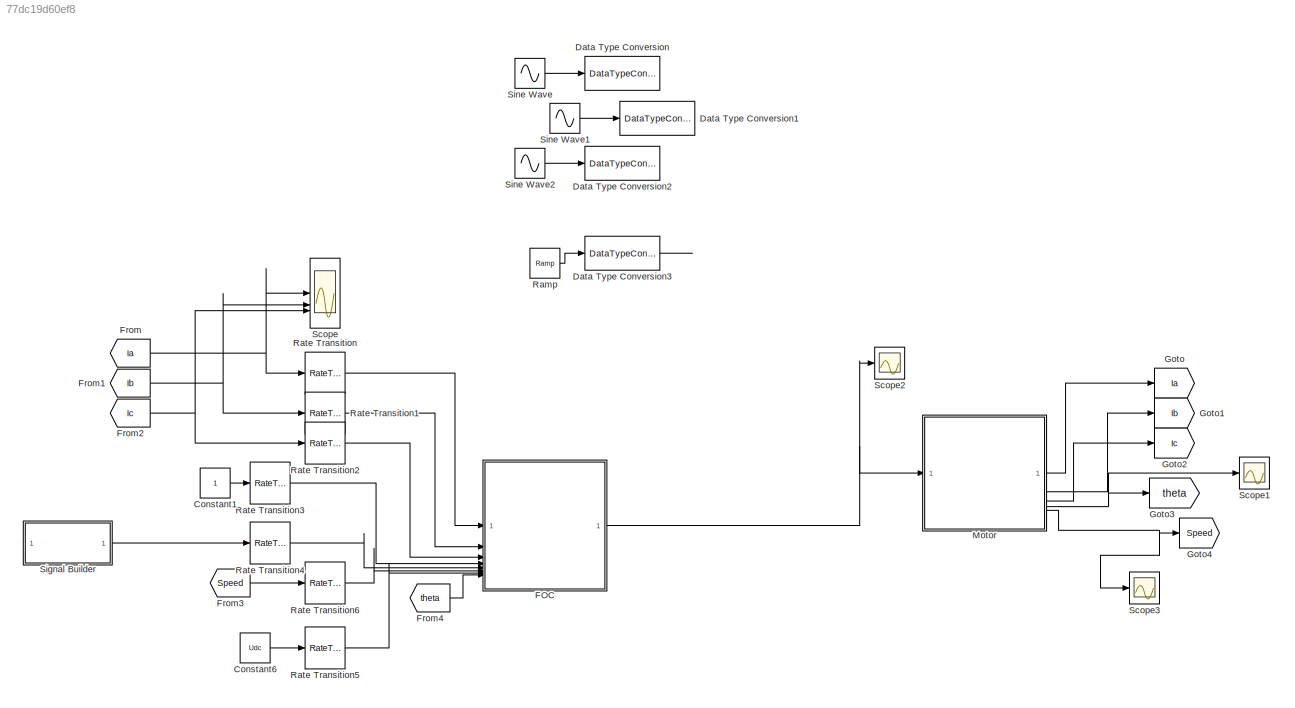
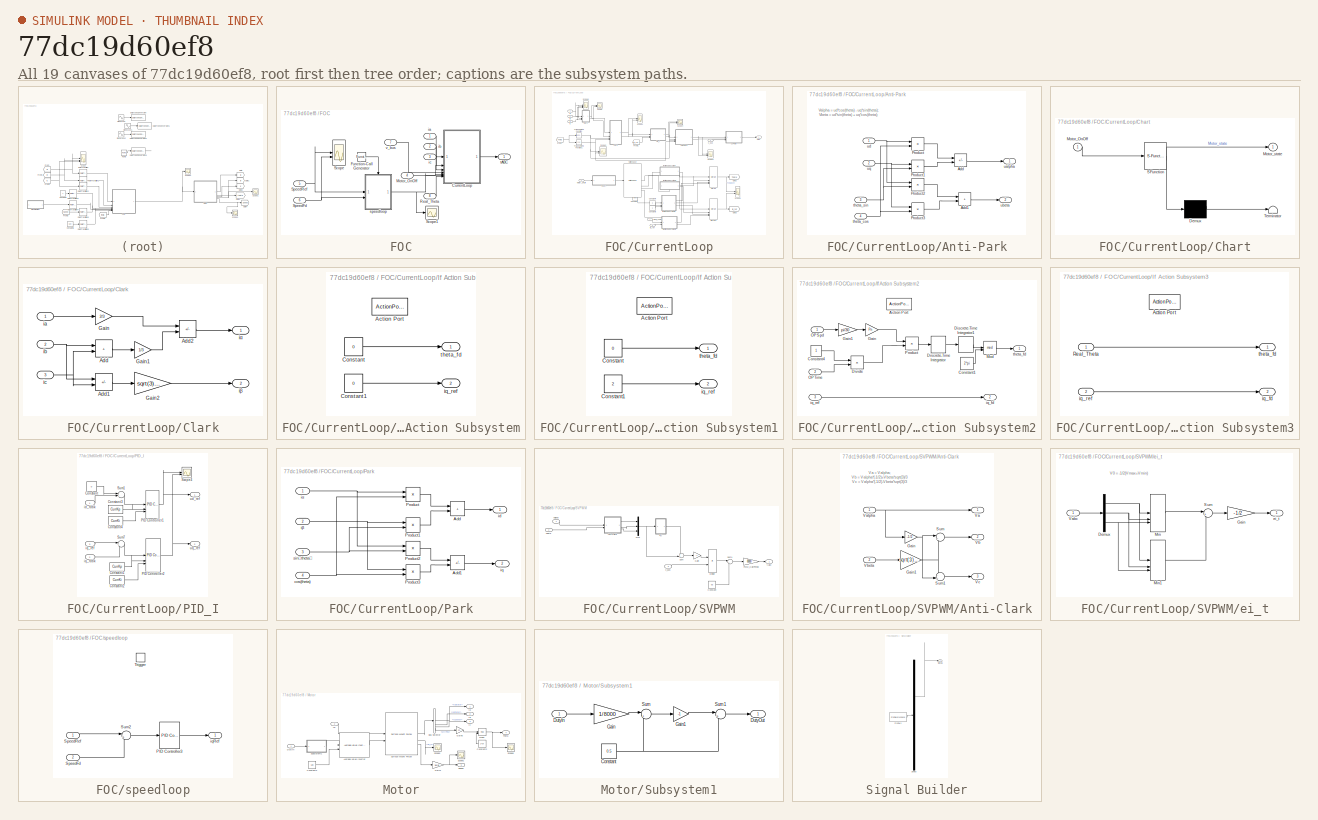
[diagram: thumbnail index - all 19 canvases of the model, root first then tree order]
MODEL slx_77dc19d60ef8
KIND model
CONFIG AbsTol = auto
CONFIG EnableMultiTasking = off
CONFIG FixedStep = 1e-4
CONFIG MaxStep = auto
CONFIG MinStep = auto
CONFIG RelTol = 1e-3
CONFIG SampleTimeConstraint = Unconstrained
CONFIG SolverName = FixedStepAuto
CONFIG StartTime = 0.0
CONFIG StopTime = 1
BLOCK [Constant] Constant1
  OutDataTypeStr = single
BLOCK [Constant] Constant6
  OutDataTypeStr = single
  Value = Udc
BLOCK [DataTypeConversion] Data Type Conversion
  OutDataTypeStr = single
  RndMeth = Floor
  SaturateOnIntegerOverflow = off
BLOCK [DataTypeConversion] Data Type Conversion1
  OutDataTypeStr = single
  RndMeth = Floor
  SaturateOnIntegerOverflow = off
BLOCK [DataTypeConversion] Data Type Conversion2
  OutDataTypeStr = single
  RndMeth = Floor
  SaturateOnIntegerOverflow = off
BLOCK [DataTypeConversion] Data Type Conversion3
  OutDataTypeStr = single
  RndMeth = Floor
  SaturateOnIntegerOverflow = off
BLOCK [SubSystem] FOC
BLOCK [Inport] FOC/ Real_Theta
  Port = 8
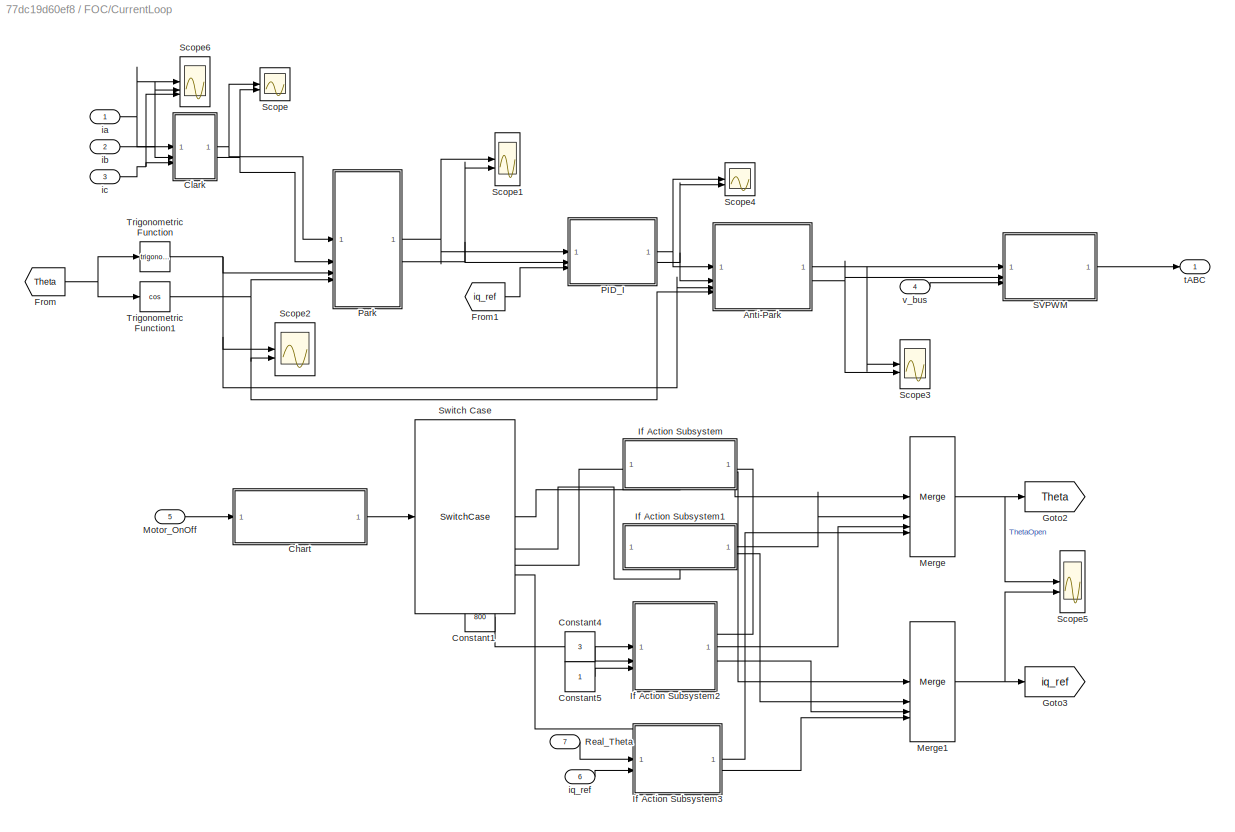
BLOCK [SubSystem] FOC/CurrentLoop
  TreatAsAtomicUnit = on
BLOCK [Inport] FOC/CurrentLoop/ Real_Theta
  Port = 7
BLOCK [SubSystem] FOC/CurrentLoop/Anti-Park
BLOCK [Sum] FOC/CurrentLoop/Anti-Park/Add
  IconShape = rectangular
  Inputs = +-
BLOCK [Sum] FOC/CurrentLoop/Anti-Park/Add1
  IconShape = rectangular
BLOCK [Product] FOC/CurrentLoop/Anti-Park/Product
BLOCK [Product] FOC/CurrentLoop/Anti-Park/Product1
BLOCK [Product] FOC/CurrentLoop/Anti-Park/Product2
BLOCK [Product] FOC/CurrentLoop/Anti-Park/Product3
BLOCK [Inport] FOC/CurrentLoop/Anti-Park/theta_cos
  Port = 4
BLOCK [Inport] FOC/CurrentLoop/Anti-Park/theta_sin
  Port = 3
BLOCK [Outport] FOC/CurrentLoop/Anti-Park/ualpha
  OutDataTypeStr = single
BLOCK [Outport] FOC/CurrentLoop/Anti-Park/ubeta
  OutDataTypeStr = single
  Port = 2
BLOCK [Inport] FOC/CurrentLoop/Anti-Park/ud
BLOCK [Inport] FOC/CurrentLoop/Anti-Park/uq
  Port = 2
BLOCK [SubSystem] FOC/CurrentLoop/Chart
  ErrorFcn = Stateflow.Translate.translate
  PermitHierarchicalResolution = ExplicitOnly
  SFBlockType = Chart
  TreatAsAtomicUnit = on
BLOCK [Demux] FOC/CurrentLoop/Chart/ Demux 
  Outputs = 1
BLOCK [S-Function] FOC/CurrentLoop/Chart/ SFunction 
  EnableBusSupport = on
  FunctionName = sf_sfun
  PortCounts = [1 2]
  SFcnIsStateOwnerBlock = off
  SFunctionDeploymentMode = off
  Tag = Stateflow S-Function 3
BLOCK [Terminator] FOC/CurrentLoop/Chart/ Terminator 
BLOCK [Inport] FOC/CurrentLoop/Chart/Motor_OnOff
BLOCK [Outport] FOC/CurrentLoop/Chart/Motor_state
BLOCK [SubSystem] FOC/CurrentLoop/Clark
BLOCK [Sum] FOC/CurrentLoop/Clark/Add
  IconShape = rectangular
BLOCK [Sum] FOC/CurrentLoop/Clark/Add1
  IconShape = rectangular
  Inputs = +-
BLOCK [Sum] FOC/CurrentLoop/Clark/Add2
  IconShape = rectangular
  Inputs = +-
BLOCK [Gain] FOC/CurrentLoop/Clark/Gain
  Gain = 2/3
BLOCK [Gain] FOC/CurrentLoop/Clark/Gain1
  Gain = 1/3
BLOCK [Gain] FOC/CurrentLoop/Clark/Gain2
  Gain = sqrt(3)/3
BLOCK [Inport] FOC/CurrentLoop/Clark/ia
BLOCK [Inport] FOC/CurrentLoop/Clark/ib
  Port = 2
BLOCK [Inport] FOC/CurrentLoop/Clark/ic
  Port = 3
BLOCK [Outport] FOC/CurrentLoop/Clark/iα
BLOCK [Outport] FOC/CurrentLoop/Clark/iβ
  Port = 2
BLOCK [Constant] FOC/CurrentLoop/Constant1
  OutDataTypeStr = single
  Value = 800
BLOCK [Constant] FOC/CurrentLoop/Constant4
  OutDataTypeStr = single
  Value = 3
BLOCK [Constant] FOC/CurrentLoop/Constant5
  OutDataTypeStr = single
BLOCK [From] FOC/CurrentLoop/From
  GotoTag = Theta
BLOCK [From] FOC/CurrentLoop/From1
  GotoTag = iq_ref
BLOCK [Goto] FOC/CurrentLoop/Goto2
  GotoTag = Theta
BLOCK [Goto] FOC/CurrentLoop/Goto3
  GotoTag = iq_ref
BLOCK [SubSystem] FOC/CurrentLoop/If Action Subsystem
  TreatAsAtomicUnit = on
BLOCK [ActionPort] FOC/CurrentLoop/If Action Subsystem/Action Port
  ActionPortLabel = case [ 1 ]:
BLOCK [Constant] FOC/CurrentLoop/If Action Subsystem/Constant
  OutDataTypeStr = single
  Value = 0
BLOCK [Constant] FOC/CurrentLoop/If Action Subsystem/Constant1
  OutDataTypeStr = single
  Value = 0
BLOCK [Outport] FOC/CurrentLoop/If Action Subsystem/iq_ref
  Port = 2
BLOCK [Outport] FOC/CurrentLoop/If Action Subsystem/theta_fd
BLOCK [SubSystem] FOC/CurrentLoop/If Action Subsystem1
  TreatAsAtomicUnit = on
BLOCK [ActionPort] FOC/CurrentLoop/If Action Subsystem1/Action Port
  ActionPortLabel = case [ 2 ]:
BLOCK [Constant] FOC/CurrentLoop/If Action Subsystem1/Constant
  OutDataTypeStr = single
  Value = 0
BLOCK [Constant] FOC/CurrentLoop/If Action Subsystem1/Constant1
  OutDataTypeStr = single
  Value = 2
BLOCK [Outport] FOC/CurrentLoop/If Action Subsystem1/iq_ref
  Port = 2
BLOCK [Outport] FOC/CurrentLoop/If Action Subsystem1/theta_fd
BLOCK [SubSystem] FOC/CurrentLoop/If Action Subsystem2
  TreatAsAtomicUnit = on
BLOCK [ActionPort] FOC/CurrentLoop/If Action Subsystem2/Action Port
  ActionPortLabel = case [ 3 ]:
BLOCK [Constant] FOC/CurrentLoop/If Action Subsystem2/Constant1
  OutDataTypeStr = single
  Value = 2*pi
BLOCK [Constant] FOC/CurrentLoop/If Action Subsystem2/Constant4
  OutDataTypeStr = single
BLOCK [DiscreteIntegrator] FOC/CurrentLoop/If Action Subsystem2/Discrete-Time Integrator
  ICPrevOutput = DiscIntNeverNeededParam
  ICPrevScaledInput = DiscIntNeverNeededParam
  InitialConditionSetting = Auto
  SampleTime = -1
BLOCK [DiscreteIntegrator] FOC/CurrentLoop/If Action Subsystem2/Discrete-Time Integrator1
  ICPrevOutput = DiscIntNeverNeededParam
  ICPrevScaledInput = DiscIntNeverNeededParam
  InitialConditionSetting = Auto
  SampleTime = -1
BLOCK [Product] FOC/CurrentLoop/If Action Subsystem2/Divide
  Inputs = */
  OutDataTypeStr = single
BLOCK [Gain] FOC/CurrentLoop/If Action Subsystem2/Gain
  Gain = Pn
BLOCK [Gain] FOC/CurrentLoop/If Action Subsystem2/Gain1
  Gain = pi/30
  OutDataTypeStr = single
BLOCK [Math] FOC/CurrentLoop/If Action Subsystem2/Mod
  Operator = mod
BLOCK [Inport] FOC/CurrentLoop/If Action Subsystem2/OPSpd
  OutDataTypeStr = single
  PortDimensions = 1
  SignalType = real
  VarSizeSig = No
BLOCK [Inport] FOC/CurrentLoop/If Action Subsystem2/OPTime
  OutDataTypeStr = single
  Port = 2
  PortDimensions = 1
  SignalType = real
  VarSizeSig = No
BLOCK [Product] FOC/CurrentLoop/If Action Subsystem2/Product
  OutDataTypeStr = single
BLOCK [Outport] FOC/CurrentLoop/If Action Subsystem2/iq_fd
  Port = 2
BLOCK [Inport] FOC/CurrentLoop/If Action Subsystem2/iq_ref
  Port = 3
BLOCK [Outport] FOC/CurrentLoop/If Action Subsystem2/theta_fd
BLOCK [SubSystem] FOC/CurrentLoop/If Action Subsystem3
  TreatAsAtomicUnit = on
BLOCK [Inport] FOC/CurrentLoop/If Action Subsystem3/ Real_Theta
  OutDataTypeStr = single
  PortDimensions = 1
  SignalType = real
  VarSizeSig = No
BLOCK [ActionPort] FOC/CurrentLoop/If Action Subsystem3/Action Port
  ActionPortLabel = case [ 4 ]:
BLOCK [Outport] FOC/CurrentLoop/If Action Subsystem3/iq_fd
  Port = 2
BLOCK [Inport] FOC/CurrentLoop/If Action Subsystem3/iq_ref
  Port = 2
BLOCK [Outport] FOC/CurrentLoop/If Action Subsystem3/theta_fd
BLOCK [Merge] FOC/CurrentLoop/Merge
  Inputs = 4
BLOCK [Merge] FOC/CurrentLoop/Merge1
  Inputs = 4
BLOCK [Inport] FOC/CurrentLoop/Motor_OnOff
  Port = 5
BLOCK [SubSystem] FOC/CurrentLoop/PID_I
BLOCK [Constant] FOC/CurrentLoop/PID_I/Constant
  OutDataTypeStr = single
  Value = 0
BLOCK [Constant] FOC/CurrentLoop/PID_I/Constant1
  OutDataTypeStr = single
  Value = CurrKp
BLOCK [Constant] FOC/CurrentLoop/PID_I/Constant2
  OutDataTypeStr = single
  Value = CurrKi
BLOCK [Constant] FOC/CurrentLoop/PID_I/Constant3
  OutDataTypeStr = single
  Value = CurrKp
BLOCK [Constant] FOC/CurrentLoop/PID_I/Constant4
  OutDataTypeStr = single
  Value = CurrKi
BLOCK [Reference] FOC/CurrentLoop/PID_I/PID Controller1  REF=slpidlib/PID Controller
  SourceBlock = slpidlib/PID Controller
  SourceType = PID 1dof
BLOCK [Reference] FOC/CurrentLoop/PID_I/PID Controller2  REF=slpidlib/PID Controller
  SourceBlock = slpidlib/PID Controller
  SourceType = PID 1dof
BLOCK [Scope] FOC/CurrentLoop/PID_I/Scope4
  Floating = off
  NumInputPorts = 2
  ScopeSpecificationString = Simulink.scopes.TimeScopeBlockCfg('CurrentConfiguration', extmgr.ConfigurationSet(extmgr.Configuration('Core','General UI',true),extmgr.Configuration('Core','Source UI',true),extmgr.Configuration('Sources','WiredSimulink',true,'DataLoggingVariableName','ScopeData4'),extmgr.Configuration('Visuals','Time Domain',true,'SerializedDisplays',{struct('MinYLimReal','-3.34669','MaxYLimReal','14.22826','YLa...<+1543ch>
BLOCK [Sum] FOC/CurrentLoop/PID_I/Sum1
  AccumDataTypeStr = single
  Inputs = |+-
  OutDataTypeStr = single
BLOCK [Sum] FOC/CurrentLoop/PID_I/Sum7
  AccumDataTypeStr = single
  Inputs = |+-
  OutDataTypeStr = single
BLOCK [Inport] FOC/CurrentLoop/PID_I/id_fdbk
  OutDataTypeStr = single
BLOCK [Inport] FOC/CurrentLoop/PID_I/iq_fdbk
  OutDataTypeStr = single
  Port = 2
BLOCK [Inport] FOC/CurrentLoop/PID_I/iq_ref
  OutDataTypeStr = single
  Port = 3
BLOCK [Outport] FOC/CurrentLoop/PID_I/ud_ref
  OutDataTypeStr = single
BLOCK [Outport] FOC/CurrentLoop/PID_I/uq_ref
  OutDataTypeStr = single
  Port = 2
BLOCK [SubSystem] FOC/CurrentLoop/Park
BLOCK [Sum] FOC/CurrentLoop/Park/Add
  AccumDataTypeStr = single
  IconShape = rectangular
  OutDataTypeStr = single
BLOCK [Sum] FOC/CurrentLoop/Park/Add1
  AccumDataTypeStr = single
  IconShape = rectangular
  Inputs = -+
  OutDataTypeStr = single
BLOCK [Product] FOC/CurrentLoop/Park/Product
  OutDataTypeStr = single
BLOCK [Product] FOC/CurrentLoop/Park/Product1
  OutDataTypeStr = single
BLOCK [Product] FOC/CurrentLoop/Park/Product2
  OutDataTypeStr = single
BLOCK [Product] FOC/CurrentLoop/Park/Product3
  OutDataTypeStr = single
BLOCK [Inport] FOC/CurrentLoop/Park/cos(theta)
  Port = 4
BLOCK [Outport] FOC/CurrentLoop/Park/id
  OutDataTypeStr = single
BLOCK [Outport] FOC/CurrentLoop/Park/iq
  OutDataTypeStr = single
  Port = 2
BLOCK [Inport] FOC/CurrentLoop/Park/iα
BLOCK [Inport] FOC/CurrentLoop/Park/iβ
  Port = 2
BLOCK [Inport] FOC/CurrentLoop/Park/sin（theta）
  Port = 3
BLOCK [SubSystem] FOC/CurrentLoop/SVPWM
BLOCK [SubSystem] FOC/CurrentLoop/SVPWM/Anti-Clark
BLOCK [Gain] FOC/CurrentLoop/SVPWM/Anti-Clark/Gain
  Gain = -1/2
  OutDataTypeStr = single
BLOCK [Gain] FOC/CurrentLoop/SVPWM/Anti-Clark/Gain1
  Gain = sqrt(3)/2
  OutDataTypeStr = single
BLOCK [Sum] FOC/CurrentLoop/SVPWM/Anti-Clark/Sum
  Inputs = |++
  OutDataTypeStr = single
BLOCK [Sum] FOC/CurrentLoop/SVPWM/Anti-Clark/Sum1
  Inputs = -+|
  OutDataTypeStr = single
BLOCK [Outport] FOC/CurrentLoop/SVPWM/Anti-Clark/Va
  OutDataTypeStr = single
BLOCK [Inport] FOC/CurrentLoop/SVPWM/Anti-Clark/Valpha
  OutDataTypeStr = single
BLOCK [Outport] FOC/CurrentLoop/SVPWM/Anti-Clark/Vb
  OutDataTypeStr = single
  Port = 2
BLOCK [Inport] FOC/CurrentLoop/SVPWM/Anti-Clark/Vbeta
  OutDataTypeStr = single
  Port = 2
BLOCK [Outport] FOC/CurrentLoop/SVPWM/Anti-Clark/Vc
  OutDataTypeStr = single
  Port = 3
BLOCK [Constant] FOC/CurrentLoop/SVPWM/Constant
  OutDataTypeStr = single
  Value = 0.5
BLOCK [Product] FOC/CurrentLoop/SVPWM/Divide
  Inputs = */
  OutDataTypeStr = single
BLOCK [Gain] FOC/CurrentLoop/SVPWM/Gain
  Gain = -1
  OutDataTypeStr = single
BLOCK [Mux] FOC/CurrentLoop/SVPWM/Mux
  DisplayOption = bar
  Inputs = 3
BLOCK [Gain] FOC/CurrentLoop/SVPWM/PWM_HalfPeriod
  Gain = 8000
  OutDataTypeStr = single
BLOCK [Sum] FOC/CurrentLoop/SVPWM/Sum
  Inputs = ++|
  OutDataTypeStr = single
BLOCK [Sum] FOC/CurrentLoop/SVPWM/Sum1
  Inputs = |++
  OutDataTypeStr = single
BLOCK [Inport] FOC/CurrentLoop/SVPWM/Valpha
BLOCK [Inport] FOC/CurrentLoop/SVPWM/Vbeta
  Port = 2
BLOCK [SubSystem] FOC/CurrentLoop/SVPWM/ei_t
BLOCK [Demux] FOC/CurrentLoop/SVPWM/ei_t/Demux
  Outputs = 3
BLOCK [Gain] FOC/CurrentLoop/SVPWM/ei_t/Gain
  Gain = -1/2
  OutDataTypeStr = single
BLOCK [MinMax] FOC/CurrentLoop/SVPWM/ei_t/Min
  Inputs = 3
  OutDataTypeStr = single
BLOCK [MinMax] FOC/CurrentLoop/SVPWM/ei_t/Min1
  Function = max
  Inputs = 3
  OutDataTypeStr = single
BLOCK [Sum] FOC/CurrentLoop/SVPWM/ei_t/Sum
  Inputs = |++
  OutDataTypeStr = single
BLOCK [Inport] FOC/CurrentLoop/SVPWM/ei_t/Vabc
  OutDataTypeStr = single
BLOCK [Outport] FOC/CurrentLoop/SVPWM/ei_t/ei_t
  OutDataTypeStr = single
BLOCK [Outport] FOC/CurrentLoop/SVPWM/tABC
  OutDataTypeStr = single
BLOCK [Inport] FOC/CurrentLoop/SVPWM/v_bus
  OutDataTypeStr = single
  Port = 3
BLOCK [Scope] FOC/CurrentLoop/Scope
  Floating = off
  NumInputPorts = 2
  ScopeSpecificationString = Simulink.scopes.TimeScopeBlockCfg('CurrentConfiguration', extmgr.ConfigurationSet(extmgr.Configuration('Core','General UI',true),extmgr.Configuration('Core','Source UI',true),extmgr.Configuration('Sources','WiredSimulink',true),extmgr.Configuration('Visuals','Time Domain',true,'SerializedDisplays',{struct('MinYLimReal','-6.24995','MaxYLimReal','6.24956','YLabelReal','','MinYLimMag','0.00000','MaxY...<+1505ch>
BLOCK [Scope] FOC/CurrentLoop/Scope1
  Floating = off
  NumInputPorts = 2
  ScopeSpecificationString = Simulink.scopes.TimeScopeBlockCfg('CurrentConfiguration', extmgr.ConfigurationSet(extmgr.Configuration('Core','General UI',true),extmgr.Configuration('Core','Source UI',true),extmgr.Configuration('Sources','WiredSimulink',true,'DataLoggingVariableName','ScopeData1'),extmgr.Configuration('Visuals','Time Domain',true,'SerializedDisplays',{struct('MinYLimReal','-6.25','MaxYLimReal','6.24997','YLabelR...<+1553ch>
BLOCK [Scope] FOC/CurrentLoop/Scope2
  Floating = off
  NumInputPorts = 2
  ScopeSpecificationString = Simulink.scopes.TimeScopeBlockCfg('CurrentConfiguration', extmgr.ConfigurationSet(extmgr.Configuration('Core','General UI',true),extmgr.Configuration('Core','Source UI',true),extmgr.Configuration('Sources','WiredSimulink',true,'DataLoggingVariableName','ScopeData2'),extmgr.Configuration('Visuals','Time Domain',true,'SerializedDisplays',{struct('MinYLimReal','-1.25','MaxYLimReal','1.25','YLabelReal...<+1509ch>
BLOCK [Scope] FOC/CurrentLoop/Scope3
  Floating = off
  NumInputPorts = 2
  ScopeSpecificationString = Simulink.scopes.TimeScopeBlockCfg('CurrentConfiguration', extmgr.ConfigurationSet(extmgr.Configuration('Core','General UI',true),extmgr.Configuration('Core','Source UI',true),extmgr.Configuration('Sources','WiredSimulink',true,'DataLoggingVariableName','ScopeData3'),extmgr.Configuration('Visuals','Time Domain',true,'SerializedDisplays',{struct('MinYLimReal','-15.58846','MaxYLimReal','15.58846','YL...<+1510ch>
BLOCK [Scope] FOC/CurrentLoop/Scope4
  Floating = off
  NumInputPorts = 2
  ScopeSpecificationString = Simulink.scopes.TimeScopeBlockCfg('CurrentConfiguration', extmgr.ConfigurationSet(extmgr.Configuration('Core','General UI',true),extmgr.Configuration('Core','Source UI',true),extmgr.Configuration('Sources','WiredSimulink',true,'DataLoggingVariableName','ScopeData11'),extmgr.Configuration('Visuals','Time Domain',true,'SerializedDisplays',{struct('MinYLimReal','-12.47077','MaxYLimReal','14.02961','Y...<+1547ch>
BLOCK [Scope] FOC/CurrentLoop/Scope5
  Floating = off
  NumInputPorts = 2
  ScopeSpecificationString = Simulink.scopes.TimeScopeBlockCfg('CurrentConfiguration', extmgr.ConfigurationSet(extmgr.Configuration('Core','General UI',true),extmgr.Configuration('Core','Source UI',true),extmgr.Configuration('Sources','WiredSimulink',true,'DataLoggingVariableName','ScopeData3'),extmgr.Configuration('Visuals','Time Domain',true,'SerializedDisplays',{struct('MinYLimReal','-4.16039','MaxYLimReal','7.44355','YLab...<+1497ch>
BLOCK [Scope] FOC/CurrentLoop/Scope6
  Floating = off
  NumInputPorts = 3
  ScopeSpecificationString = Simulink.scopes.TimeScopeBlockCfg('CurrentConfiguration', extmgr.ConfigurationSet(extmgr.Configuration('Core','General UI',true),extmgr.Configuration('Core','Source UI',true),extmgr.Configuration('Sources','WiredSimulink',true,'DataLoggingVariableName','ScopeData4'),extmgr.Configuration('Visuals','Time Domain',true,'SerializedDisplays',{struct('MinYLimReal','-6.24995','MaxYLimReal','6.24956','YLab...<+1539ch>
BLOCK [SwitchCase] FOC/CurrentLoop/Switch Case
  CaseConditions = {1,2,3,4}
BLOCK [Trigonometry] FOC/CurrentLoop/Trigonometric Function
BLOCK [Trigonometry] FOC/CurrentLoop/Trigonometric Function1
  Operator = cos
BLOCK [Inport] FOC/CurrentLoop/ia
BLOCK [Inport] FOC/CurrentLoop/ib
  Port = 2
BLOCK [Inport] FOC/CurrentLoop/ic
  Port = 3
BLOCK [Inport] FOC/CurrentLoop/iq_ref
  Port = 6
BLOCK [Outport] FOC/CurrentLoop/tABC
BLOCK [Inport] FOC/CurrentLoop/v_bus
  OutDataTypeStr = single
  Port = 4
BLOCK [Reference] FOC/Function-Call Generator  REF=simulink/Ports &
Subsystems/Function-Call
Generator
  SourceBlock = simulink/Ports &\nSubsystems/Function-Call\nGenerator
  SourceType = Function-Call Generator
BLOCK [Inport] FOC/Motor_OnOff
  Port = 4
BLOCK [Scope] FOC/Scope
  Floating = off
  NumInputPorts = 2
  ScopeSpecificationString = Simulink.scopes.TimeScopeBlockCfg('CurrentConfiguration', extmgr.ConfigurationSet(extmgr.Configuration('Core','General UI',true),extmgr.Configuration('Core','Source UI',true),extmgr.Configuration('Sources','WiredSimulink',true,'DataLoggingVariableName','ScopeData3'),extmgr.Configuration('Visuals','Time Domain',true,'SerializedDisplays',{struct('MinYLimReal','-159.85423','MaxYLimReal','1413.50431',...<+1515ch>
BLOCK [Scope] FOC/Scope1
  Floating = off
  NumInputPorts = 1
  ScopeSpecificationString = Simulink.scopes.TimeScopeBlockCfg('CurrentConfiguration', extmgr.ConfigurationSet(extmgr.Configuration('Core','General UI',true),extmgr.Configuration('Core','Source UI',true),extmgr.Configuration('Sources','WiredSimulink',true,'DataLoggingVariableName','ScopeData4'),extmgr.Configuration('Visuals','Time Domain',true,'SerializedDisplays',{struct('MinYLimReal','-3.75','MaxYLimReal','3.75','YLabelReal...<+1470ch>
BLOCK [Inport] FOC/SpeedFd
  Port = 6
BLOCK [Inport] FOC/SpeedRef
  Port = 5
BLOCK [Inport] FOC/ia
BLOCK [Inport] FOC/ib
  Port = 2
BLOCK [Inport] FOC/ic
  Port = 3
BLOCK [SubSystem] FOC/speedloop
BLOCK [Reference] FOC/speedloop/PID Controller3  REF=slpidlib/PID Controller
  SourceBlock = slpidlib/PID Controller
  SourceType = PID 1dof
BLOCK [Inport] FOC/speedloop/SpeedFd
  Port = 2
BLOCK [Inport] FOC/speedloop/SpeedRef
BLOCK [Sum] FOC/speedloop/Sum2
  AccumDataTypeStr = single
  Inputs = |+-
  OutDataTypeStr = single
BLOCK [TriggerPort] FOC/speedloop/Trigger
  PortDimensions = 1
  StatesWhenEnabling = held
  TriggerType = function-call
  VariantControl = (inherit)
BLOCK [Outport] FOC/speedloop/iqRef
BLOCK [Outport] FOC/tABC
BLOCK [Inport] FOC/v_bus
  Port = 7
BLOCK [From] From
  GotoTag = Ia
BLOCK [From] From1
  GotoTag = Ib
BLOCK [From] From2
  GotoTag = Ic
BLOCK [From] From3
  GotoTag = Speed
BLOCK [From] From4
  GotoTag = theta
  TagVisibility = global
BLOCK [Goto] Goto
  GotoTag = Ia
BLOCK [Goto] Goto1
  GotoTag = Ib
BLOCK [Goto] Goto2
  GotoTag = Ic
BLOCK [Goto] Goto3
  GotoTag = theta
  TagVisibility = global
BLOCK [Goto] Goto4
  GotoTag = Speed
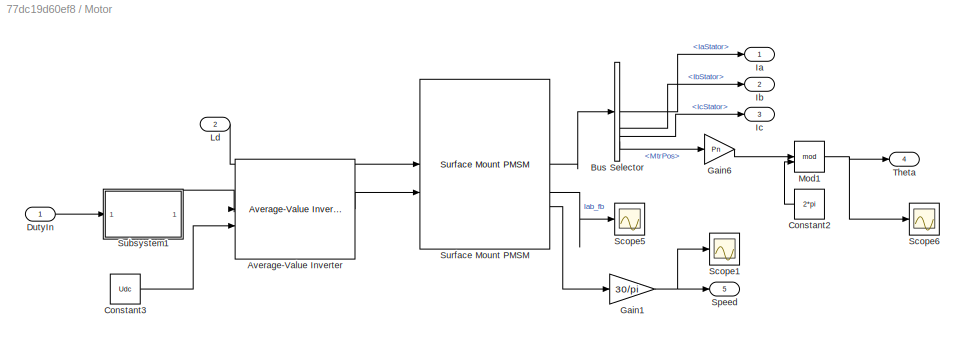
BLOCK [SubSystem] Motor
BLOCK [Reference] Motor/Average-Value Inverter  REF=mcbplantlib/Average-Value Inverter
  SourceBlock = mcbplantlib/Average-Value Inverter
  SourceType = Average Value Inverter
BLOCK [BusSelector] Motor/Bus Selector
  OutputSignals = IaStator,IbStator,IcStator,MtrPos
BLOCK [Constant] Motor/Constant2
  NameLocation = top
  OutDataTypeStr = single
  Value = 2*pi
BLOCK [Constant] Motor/Constant3
  Value = Udc
BLOCK [Inport] Motor/DutyIn
BLOCK [Gain] Motor/Gain1
  Gain = 30/pi
  OutDataTypeStr = single
BLOCK [Gain] Motor/Gain6
  Gain = Pn
  OutDataTypeStr = single
BLOCK [Outport] Motor/Ia
BLOCK [Outport] Motor/Ib
  Port = 2
BLOCK [Outport] Motor/Ic
  Port = 3
BLOCK [Inport] Motor/Ld
  Port = 2
BLOCK [Math] Motor/Mod1
  Operator = mod
  OutputSignalType = real
BLOCK [Scope] Motor/Scope1
  Floating = off
  NumInputPorts = 1
  ScopeSpecificationString = Simulink.scopes.TimeScopeBlockCfg('CurrentConfiguration', extmgr.ConfigurationSet(extmgr.Configuration('Core','General UI',true),extmgr.Configuration('Core','Source UI',true),extmgr.Configuration('Sources','WiredSimulink',true,'DataLoggingVariableName','ScopeData1'),extmgr.Configuration('Visuals','Time Domain',true,'SerializedDisplays',{struct('MinYLimReal','-159.85454','MaxYLimReal','1413.50652',...<+1525ch>
BLOCK [Scope] Motor/Scope5
  Floating = off
  NumInputPorts = 1
  ScopeSpecificationString = Simulink.scopes.TimeScopeBlockCfg('CurrentConfiguration', extmgr.ConfigurationSet(extmgr.Configuration('Core','General UI',true),extmgr.Configuration('Core','Source UI',true),extmgr.Configuration('Sources','WiredSimulink',true,'DataLoggingVariableName','ScopeData6'),extmgr.Configuration('Visuals','Time Domain',true,'SerializedDisplays',{struct('MinYLimReal','-2.6051','MaxYLimReal','2.60514','YLabe...<+1583ch>
BLOCK [Scope] Motor/Scope6
  Floating = off
  NumInputPorts = 1
  ScopeSpecificationString = Simulink.scopes.TimeScopeBlockCfg('CurrentConfiguration', extmgr.ConfigurationSet(extmgr.Configuration('Core','General UI',true),extmgr.Configuration('Core','Source UI',true),extmgr.Configuration('Sources','WiredSimulink',true,'DataLoggingVariableName','ScopeData7'),extmgr.Configuration('Visuals','Time Domain',true,'SerializedDisplays',{struct('MinYLimReal','-0.78528','MaxYLimReal','7.06854','YLab...<+1554ch>
BLOCK [Outport] Motor/Speed
  Port = 5
BLOCK [SubSystem] Motor/Subsystem1
  PortSchema = {"entries":[{"content":{"sides":[{"content":{"connectorIds":["In1"]},"type":"ConnectorPlacement.EquallySpacedRectSide","uuid":"8ccc51de-fa2a-4900-80a3-4cdf9aa76f01"},{"content":{"connectorIds":[],"side":"RIGHT"},"type":"ConnectorPlacement.EquallySpacedRectSide","uuid":"32c06e0d-3f1d-4948-af96-e310e54308a0"},{"content":{"connectorIds":["Out1"],"side":"TOP"},"type":"ConnectorPlacement.EquallySpacedR...<+240ch>
BLOCK [Constant] Motor/Subsystem1/Constant
  SampleTime = -1
  Value = 0.5
BLOCK [Inport] Motor/Subsystem1/DutyIn
BLOCK [Outport] Motor/Subsystem1/DutyOut
BLOCK [Gain] Motor/Subsystem1/Gain
  Gain = 1/8000
  ParamDataTypeStr = single
BLOCK [Gain] Motor/Subsystem1/Gain1
  Gain = -1
BLOCK [Sum] Motor/Subsystem1/Sum
  Inputs = |+-
BLOCK [Sum] Motor/Subsystem1/Sum1
  Inputs = |++
BLOCK [Reference] Motor/Surface Mount PMSM  REF=autolibpmsmexterior/Surface Mount PMSM
  LibrarySourceBlock = mcblib/Electrical Systems/Motors/Surface Mount PMSM
  SourceBlock = autolibpmsmexterior/Surface Mount PMSM
  SourceType = Surface Mount PMSM
BLOCK [Outport] Motor/Theta
  Port = 4
BLOCK [Reference] Ramp  REF=simulink/Sources/Ramp
  SourceBlock = simulink/Sources/Ramp
  SourceType = Ramp
BLOCK [RateTransition] Rate Transition
BLOCK [RateTransition] Rate Transition1
BLOCK [RateTransition] Rate Transition2
BLOCK [RateTransition] Rate Transition3
BLOCK [RateTransition] Rate Transition4
BLOCK [RateTransition] Rate Transition5
BLOCK [RateTransition] Rate Transition6
BLOCK [Scope] Scope
  Floating = off
  NumInputPorts = 3
  ScopeSpecificationString = Simulink.scopes.TimeScopeBlockCfg('CurrentConfiguration', extmgr.ConfigurationSet(extmgr.Configuration('Core','General UI',true),extmgr.Configuration('Core','Source UI',true),extmgr.Configuration('Sources','WiredSimulink',true,'DataLoggingVariableName','ScopeData1'),extmgr.Configuration('Visuals','Time Domain',true,'SerializedDisplays',{struct('MinYLimReal','-1.78281','MaxYLimReal','1.78458','YLab...<+1590ch>
BLOCK [Scope] Scope1
  Floating = off
  NumInputPorts = 1
  ScopeSpecificationString = Simulink.scopes.TimeScopeBlockCfg('CurrentConfiguration', extmgr.ConfigurationSet(extmgr.Configuration('Core','General UI',true),extmgr.Configuration('Core','Source UI',true),extmgr.Configuration('Sources','WiredSimulink',true,'DataLoggingVariableName','ScopeData2'),extmgr.Configuration('Visuals','Time Domain',true,'SerializedDisplays',{struct('MinYLimReal','-0.78531','MaxYLimReal','7.06854','YLab...<+1486ch>
BLOCK [Scope] Scope2
  Floating = off
  NumInputPorts = 1
  ScopeSpecificationString = Simulink.scopes.TimeScopeBlockCfg('CurrentConfiguration', extmgr.ConfigurationSet(extmgr.Configuration('Core','General UI',true),extmgr.Configuration('Core','Source UI',true),extmgr.Configuration('Sources','WiredSimulink',true,'DataLoggingVariableName','ScopeData10'),extmgr.Configuration('Visuals','Time Domain',true,'SerializedDisplays',{struct('MinYLimReal','-505.57475','MaxYLimReal','8505.57493'...<+1568ch>
BLOCK [Scope] Scope3
  Floating = off
  NumInputPorts = 1
  ScopeSpecificationString = Simulink.scopes.TimeScopeBlockCfg('CurrentConfiguration', extmgr.ConfigurationSet(extmgr.Configuration('Core','General UI',true),extmgr.Configuration('Core','Source UI',true),extmgr.Configuration('Sources','WiredSimulink',true,'DataLoggingVariableName','ScopeData2'),extmgr.Configuration('Visuals','Time Domain',true,'SerializedDisplays',{struct('MinYLimReal','-159.85454','MaxYLimReal','1413.50652',...<+1504ch>
BLOCK [SubSystem] Signal Builder
  ClipboardFcn = sigbuilder_block('clipboard');
  CloseFcn = sigbuilder_block('close');
  ContinueFcn = sigbuilder_block('continue');
  CopyFcn = sigbuilder_block('copy');
  DeleteFcn = sigbuilder_block('delete');
  LoadFcn = sigbuilder_block('load',[367.2 103.2 550.8 400.2 ]);
  MaskHideContents = on
  ModelCloseFcn = sigbuilder_block('modelClose');
  NameChangeFcn = sigbuilder_block('namechange');
  OpenFcn = sigbuilder_block('open',[367.2 103.2 550.8 400.2 ]);
  PauseFcn = sigbuilder_block('pause');
  PreSaveFcn = sigbuilder_block('preSave');
  StartFcn = sigbuilder_block('start');
  StopFcn = sigbuilder_block('stop');
  Tag = STV Subsys
BLOCK [Demux] Signal Builder/Demux
  DisplayOption = none
  Outputs = 1
  Tag = STV Demux
BLOCK [FromWorkspace] Signal Builder/FromWs
  Tag = STV FromWs
  VariableName = tuvar
BLOCK [Outport] Signal Builder/Signal 1
  Tag = STV Outport
BLOCK [Sin] Sine Wave
  Amplitude = 5
  Frequency = 502.6544
  SampleTime = 1e-4
BLOCK [Sin] Sine Wave1
  Amplitude = 5
  Frequency = 502.6544
  Phase = -2*pi/3
  SampleTime = 1e-4
BLOCK [Sin] Sine Wave2
  Amplitude = 5
  Frequency = 502.6544
  Phase = -4*pi/3
  SampleTime = 1e-4
ANNOTATION FOC/CurrentLoop/Anti-Park: Valpha = ud*cos(theta) - uq*sin(theta); Vbeta = ud*sin(theta) + uq*cos(theta);
ANNOTATION FOC/CurrentLoop/SVPWM/Anti-Clark: Va = Valpha; Vb = Valpha*(-1/2)+Vbeta*sqrt(3)/3 Vc = Valpha*(-1/2)-Vbeta*sqrt(3)/3
ANNOTATION FOC/CurrentLoop/SVPWM/ei_t: V0 = -1/2(Vmax+Vmin)
LINE Constant1:1 -> Rate Transition3:1
LINE Constant6:1 -> Rate Transition5:1
LINE FOC/ Real_Theta:1 -> FOC/CurrentLoop:7
LINE FOC/CurrentLoop/ Real_Theta:1 -> FOC/CurrentLoop/If Action Subsystem3:1
LINE FOC/CurrentLoop/Anti-Park/Add1:1 -> FOC/CurrentLoop/Anti-Park/ubeta:1
LINE FOC/CurrentLoop/Anti-Park/Add:1 -> FOC/CurrentLoop/Anti-Park/ualpha:1
LINE FOC/CurrentLoop/Anti-Park/Product1:1 -> FOC/CurrentLoop/Anti-Park/Add:2
LINE FOC/CurrentLoop/Anti-Park/Product2:1 -> FOC/CurrentLoop/Anti-Park/Add1:1
LINE FOC/CurrentLoop/Anti-Park/Product3:1 -> FOC/CurrentLoop/Anti-Park/Add1:2
LINE FOC/CurrentLoop/Anti-Park/Product:1 -> FOC/CurrentLoop/Anti-Park/Add:1
NET FOC/CurrentLoop/Anti-Park/theta_cos:1 -> FOC/CurrentLoop/Anti-Park/Product3:2, FOC/CurrentLoop/Anti-Park/Product:2
NET FOC/CurrentLoop/Anti-Park/theta_sin:1 -> FOC/CurrentLoop/Anti-Park/Product1:2, FOC/CurrentLoop/Anti-Park/Product2:2
NET FOC/CurrentLoop/Anti-Park/ud:1 -> FOC/CurrentLoop/Anti-Park/Product2:1, FOC/CurrentLoop/Anti-Park/Product:1
NET FOC/CurrentLoop/Anti-Park/uq:1 -> FOC/CurrentLoop/Anti-Park/Product1:1, FOC/CurrentLoop/Anti-Park/Product3:1
NET FOC/CurrentLoop/Anti-Park:1 -> FOC/CurrentLoop/SVPWM:1, FOC/CurrentLoop/Scope3:1
NET FOC/CurrentLoop/Anti-Park:2 -> FOC/CurrentLoop/SVPWM:2, FOC/CurrentLoop/Scope3:2
LINE FOC/CurrentLoop/Chart:1 -> FOC/CurrentLoop/Switch Case:1
LINE FOC/CurrentLoop/Clark/Add1:1 -> FOC/CurrentLoop/Clark/Gain2:1
LINE FOC/CurrentLoop/Clark/Add2:1 -> FOC/CurrentLoop/Clark/iα:1
LINE FOC/CurrentLoop/Clark/Add:1 -> FOC/CurrentLoop/Clark/Gain1:1
LINE FOC/CurrentLoop/Clark/Gain1:1 -> FOC/CurrentLoop/Clark/Add2:2
LINE FOC/CurrentLoop/Clark/Gain2:1 -> FOC/CurrentLoop/Clark/iβ:1
LINE FOC/CurrentLoop/Clark/Gain:1 -> FOC/CurrentLoop/Clark/Add2:1
LINE FOC/CurrentLoop/Clark/ia:1 -> FOC/CurrentLoop/Clark/Gain:1
NET FOC/CurrentLoop/Clark/ib:1 -> FOC/CurrentLoop/Clark/Add1:1, FOC/CurrentLoop/Clark/Add:1
NET FOC/CurrentLoop/Clark/ic:1 -> FOC/CurrentLoop/Clark/Add1:2, FOC/CurrentLoop/Clark/Add:2
NET FOC/CurrentLoop/Clark:1 -> FOC/CurrentLoop/Park:1, FOC/CurrentLoop/Scope:1
NET FOC/CurrentLoop/Clark:2 -> FOC/CurrentLoop/Park:2, FOC/CurrentLoop/Scope:2
LINE FOC/CurrentLoop/Constant1:1 -> FOC/CurrentLoop/If Action Subsystem2:1
LINE FOC/CurrentLoop/Constant4:1 -> FOC/CurrentLoop/If Action Subsystem2:2
LINE FOC/CurrentLoop/Constant5:1 -> FOC/CurrentLoop/If Action Subsystem2:3
LINE FOC/CurrentLoop/From1:1 -> FOC/CurrentLoop/PID_I:3
NET FOC/CurrentLoop/From:1 -> FOC/CurrentLoop/Trigonometric Function1:1, FOC/CurrentLoop/Trigonometric Function:1
LINE FOC/CurrentLoop/If Action Subsystem/Constant1:1 -> FOC/CurrentLoop/If Action Subsystem/iq_ref:1
LINE FOC/CurrentLoop/If Action Subsystem/Constant:1 -> FOC/CurrentLoop/If Action Subsystem/theta_fd:1
LINE FOC/CurrentLoop/If Action Subsystem1/Constant1:1 -> FOC/CurrentLoop/If Action Subsystem1/iq_ref:1
LINE FOC/CurrentLoop/If Action Subsystem1/Constant:1 -> FOC/CurrentLoop/If Action Subsystem1/theta_fd:1
LINE FOC/CurrentLoop/If Action Subsystem1:1 -> FOC/CurrentLoop/Merge:2
LINE FOC/CurrentLoop/If Action Subsystem1:2 -> FOC/CurrentLoop/Merge1:2
LINE FOC/CurrentLoop/If Action Subsystem2/Constant1:1 -> FOC/CurrentLoop/If Action Subsystem2/Mod:2
LINE FOC/CurrentLoop/If Action Subsystem2/Constant4:1 -> FOC/CurrentLoop/If Action Subsystem2/Divide:1
LINE FOC/CurrentLoop/If Action Subsystem2/Discrete-Time Integrator1:1 -> FOC/CurrentLoop/If Action Subsystem2/Mod:1
LINE FOC/CurrentLoop/If Action Subsystem2/Discrete-Time Integrator:1 -> FOC/CurrentLoop/If Action Subsystem2/Discrete-Time Integrator1:1
LINE FOC/CurrentLoop/If Action Subsystem2/Divide:1 -> FOC/CurrentLoop/If Action Subsystem2/Product:2
LINE FOC/CurrentLoop/If Action Subsystem2/Gain1:1 -> FOC/CurrentLoop/If Action Subsystem2/Gain:1
LINE FOC/CurrentLoop/If Action Subsystem2/Gain:1 -> FOC/CurrentLoop/If Action Subsystem2/Product:1
LINE FOC/CurrentLoop/If Action Subsystem2/Mod:1 -> FOC/CurrentLoop/If Action Subsystem2/theta_fd:1
LINE FOC/CurrentLoop/If Action Subsystem2/OPSpd:1 -> FOC/CurrentLoop/If Action Subsystem2/Gain1:1
LINE FOC/CurrentLoop/If Action Subsystem2/OPTime:1 -> FOC/CurrentLoop/If Action Subsystem2/Divide:2
LINE FOC/CurrentLoop/If Action Subsystem2/Product:1 -> FOC/CurrentLoop/If Action Subsystem2/Discrete-Time Integrator:1
LINE FOC/CurrentLoop/If Action Subsystem2/iq_ref:1 -> FOC/CurrentLoop/If Action Subsystem2/iq_fd:1
LINE FOC/CurrentLoop/If Action Subsystem2:1 -> FOC/CurrentLoop/Merge:3
LINE FOC/CurrentLoop/If Action Subsystem2:2 -> FOC/CurrentLoop/Merge1:3
LINE FOC/CurrentLoop/If Action Subsystem3/ Real_Theta:1 -> FOC/CurrentLoop/If Action Subsystem3/theta_fd:1
LINE FOC/CurrentLoop/If Action Subsystem3/iq_ref:1 -> FOC/CurrentLoop/If Action Subsystem3/iq_fd:1
LINE FOC/CurrentLoop/If Action Subsystem3:1 -> FOC/CurrentLoop/Merge:4
LINE FOC/CurrentLoop/If Action Subsystem3:2 -> FOC/CurrentLoop/Merge1:4
LINE FOC/CurrentLoop/If Action Subsystem:1 -> FOC/CurrentLoop/Merge:1
LINE FOC/CurrentLoop/If Action Subsystem:2 -> FOC/CurrentLoop/Merge1:1
NET FOC/CurrentLoop/Merge1:1 -> FOC/CurrentLoop/Goto3:1, FOC/CurrentLoop/Scope5:2
NET FOC/CurrentLoop/Merge:1 -> FOC/CurrentLoop/Goto2:1, FOC/CurrentLoop/Scope5:1
LINE FOC/CurrentLoop/Motor_OnOff:1 -> FOC/CurrentLoop/Chart:1
LINE FOC/CurrentLoop/PID_I/Constant1:1 -> FOC/CurrentLoop/PID_I/PID Controller2:2
LINE FOC/CurrentLoop/PID_I/Constant2:1 -> FOC/CurrentLoop/PID_I/PID Controller2:3
LINE FOC/CurrentLoop/PID_I/Constant3:1 -> FOC/CurrentLoop/PID_I/PID Controller1:2
LINE FOC/CurrentLoop/PID_I/Constant4:1 -> FOC/CurrentLoop/PID_I/PID Controller1:3
LINE FOC/CurrentLoop/PID_I/Constant:1 -> FOC/CurrentLoop/PID_I/Sum1:1
NET FOC/CurrentLoop/PID_I/PID Controller1:1 -> FOC/CurrentLoop/PID_I/Scope4:1, FOC/CurrentLoop/PID_I/ud_ref:1
NET FOC/CurrentLoop/PID_I/PID Controller2:1 -> FOC/CurrentLoop/PID_I/Scope4:2, FOC/CurrentLoop/PID_I/uq_ref:1
LINE FOC/CurrentLoop/PID_I/Sum1:1 -> FOC/CurrentLoop/PID_I/PID Controller1:1
LINE FOC/CurrentLoop/PID_I/Sum7:1 -> FOC/CurrentLoop/PID_I/PID Controller2:1
LINE FOC/CurrentLoop/PID_I/id_fdbk:1 -> FOC/CurrentLoop/PID_I/Sum1:2
LINE FOC/CurrentLoop/PID_I/iq_fdbk:1 -> FOC/CurrentLoop/PID_I/Sum7:2
LINE FOC/CurrentLoop/PID_I/iq_ref:1 -> FOC/CurrentLoop/PID_I/Sum7:1
NET FOC/CurrentLoop/PID_I:1 -> FOC/CurrentLoop/Anti-Park:1, FOC/CurrentLoop/Scope4:1
NET FOC/CurrentLoop/PID_I:2 -> FOC/CurrentLoop/Anti-Park:2, FOC/CurrentLoop/Scope4:2
LINE FOC/CurrentLoop/Park/Add1:1 -> FOC/CurrentLoop/Park/iq:1
LINE FOC/CurrentLoop/Park/Add:1 -> FOC/CurrentLoop/Park/id:1
LINE FOC/CurrentLoop/Park/Product1:1 -> FOC/CurrentLoop/Park/Add:2
LINE FOC/CurrentLoop/Park/Product2:1 -> FOC/CurrentLoop/Park/Add1:1
LINE FOC/CurrentLoop/Park/Product3:1 -> FOC/CurrentLoop/Park/Add1:2
LINE FOC/CurrentLoop/Park/Product:1 -> FOC/CurrentLoop/Park/Add:1
NET FOC/CurrentLoop/Park/cos(theta):1 -> FOC/CurrentLoop/Park/Product3:2, FOC/CurrentLoop/Park/Product:2
NET FOC/CurrentLoop/Park/iα:1 -> FOC/CurrentLoop/Park/Product2:1, FOC/CurrentLoop/Park/Product:1
NET FOC/CurrentLoop/Park/iβ:1 -> FOC/CurrentLoop/Park/Product1:1, FOC/CurrentLoop/Park/Product3:1
NET FOC/CurrentLoop/Park/sin（theta）:1 -> FOC/CurrentLoop/Park/Product1:2, FOC/CurrentLoop/Park/Product2:2
NET FOC/CurrentLoop/Park:1 -> FOC/CurrentLoop/PID_I:1, FOC/CurrentLoop/Scope1:1
NET FOC/CurrentLoop/Park:2 -> FOC/CurrentLoop/PID_I:2, FOC/CurrentLoop/Scope1:2
NET FOC/CurrentLoop/SVPWM/Anti-Clark/Gain1:1 -> FOC/CurrentLoop/SVPWM/Anti-Clark/Sum1:1, FOC/CurrentLoop/SVPWM/Anti-Clark/Sum:2
NET FOC/CurrentLoop/SVPWM/Anti-Clark/Gain:1 -> FOC/CurrentLoop/SVPWM/Anti-Clark/Sum1:2, FOC/CurrentLoop/SVPWM/Anti-Clark/Sum:1
LINE FOC/CurrentLoop/SVPWM/Anti-Clark/Sum1:1 -> FOC/CurrentLoop/SVPWM/Anti-Clark/Vc:1
LINE FOC/CurrentLoop/SVPWM/Anti-Clark/Sum:1 -> FOC/CurrentLoop/SVPWM/Anti-Clark/Vb:1
NET FOC/CurrentLoop/SVPWM/Anti-Clark/Valpha:1 -> FOC/CurrentLoop/SVPWM/Anti-Clark/Gain:1, FOC/CurrentLoop/SVPWM/Anti-Clark/Va:1
LINE FOC/CurrentLoop/SVPWM/Anti-Clark/Vbeta:1 -> FOC/CurrentLoop/SVPWM/Anti-Clark/Gain1:1
LINE FOC/CurrentLoop/SVPWM/Anti-Clark:1 -> FOC/CurrentLoop/SVPWM/Mux:1
LINE FOC/CurrentLoop/SVPWM/Anti-Clark:2 -> FOC/CurrentLoop/SVPWM/Mux:2
LINE FOC/CurrentLoop/SVPWM/Anti-Clark:3 -> FOC/CurrentLoop/SVPWM/Mux:3
LINE FOC/CurrentLoop/SVPWM/Constant:1 -> FOC/CurrentLoop/SVPWM/Sum1:2
LINE FOC/CurrentLoop/SVPWM/Divide:1 -> FOC/CurrentLoop/SVPWM/Sum1:1
LINE FOC/CurrentLoop/SVPWM/Gain:1 -> FOC/CurrentLoop/SVPWM/Divide:1
NET FOC/CurrentLoop/SVPWM/Mux:1 -> FOC/CurrentLoop/SVPWM/Sum:2, FOC/CurrentLoop/SVPWM/ei_t:1
LINE FOC/CurrentLoop/SVPWM/PWM_HalfPeriod:1 -> FOC/CurrentLoop/SVPWM/tABC:1
LINE FOC/CurrentLoop/SVPWM/Sum1:1 -> FOC/CurrentLoop/SVPWM/PWM_HalfPeriod:1
LINE FOC/CurrentLoop/SVPWM/Sum:1 -> FOC/CurrentLoop/SVPWM/Gain:1
LINE FOC/CurrentLoop/SVPWM/Valpha:1 -> FOC/CurrentLoop/SVPWM/Anti-Clark:1
LINE FOC/CurrentLoop/SVPWM/Vbeta:1 -> FOC/CurrentLoop/SVPWM/Anti-Clark:2
NET FOC/CurrentLoop/SVPWM/ei_t/Demux:1 -> FOC/CurrentLoop/SVPWM/ei_t/Min1:1, FOC/CurrentLoop/SVPWM/ei_t/Min:1
NET FOC/CurrentLoop/SVPWM/ei_t/Demux:2 -> FOC/CurrentLoop/SVPWM/ei_t/Min1:2, FOC/CurrentLoop/SVPWM/ei_t/Min:2
NET FOC/CurrentLoop/SVPWM/ei_t/Demux:3 -> FOC/CurrentLoop/SVPWM/ei_t/Min1:3, FOC/CurrentLoop/SVPWM/ei_t/Min:3
LINE FOC/CurrentLoop/SVPWM/ei_t/Gain:1 -> FOC/CurrentLoop/SVPWM/ei_t/ei_t:1
LINE FOC/CurrentLoop/SVPWM/ei_t/Min1:1 -> FOC/CurrentLoop/SVPWM/ei_t/Sum:2
LINE FOC/CurrentLoop/SVPWM/ei_t/Min:1 -> FOC/CurrentLoop/SVPWM/ei_t/Sum:1
LINE FOC/CurrentLoop/SVPWM/ei_t/Sum:1 -> FOC/CurrentLoop/SVPWM/ei_t/Gain:1
LINE FOC/CurrentLoop/SVPWM/ei_t/Vabc:1 -> FOC/CurrentLoop/SVPWM/ei_t/Demux:1
LINE FOC/CurrentLoop/SVPWM/ei_t:1 -> FOC/CurrentLoop/SVPWM/Sum:1
LINE FOC/CurrentLoop/SVPWM/v_bus:1 -> FOC/CurrentLoop/SVPWM/Divide:2
LINE FOC/CurrentLoop/SVPWM:1 -> FOC/CurrentLoop/tABC:1
LINE FOC/CurrentLoop/Switch Case:1 -> FOC/CurrentLoop/If Action Subsystem:ifaction
LINE FOC/CurrentLoop/Switch Case:2 -> FOC/CurrentLoop/If Action Subsystem1:ifaction
LINE FOC/CurrentLoop/Switch Case:3 -> FOC/CurrentLoop/If Action Subsystem2:ifaction
LINE FOC/CurrentLoop/Switch Case:4 -> FOC/CurrentLoop/If Action Subsystem3:ifaction
NET FOC/CurrentLoop/Trigonometric Function1:1 -> FOC/CurrentLoop/Anti-Park:4, FOC/CurrentLoop/Park:4, FOC/CurrentLoop/Scope2:2
NET FOC/CurrentLoop/Trigonometric Function:1 -> FOC/CurrentLoop/Anti-Park:3, FOC/CurrentLoop/Park:3, FOC/CurrentLoop/Scope2:1
NET FOC/CurrentLoop/ia:1 -> FOC/CurrentLoop/Clark:1, FOC/CurrentLoop/Scope6:1
NET FOC/CurrentLoop/ib:1 -> FOC/CurrentLoop/Clark:2, FOC/CurrentLoop/Scope6:2
NET FOC/CurrentLoop/ic:1 -> FOC/CurrentLoop/Clark:3, FOC/CurrentLoop/Scope6:3
LINE FOC/CurrentLoop/iq_ref:1 -> FOC/CurrentLoop/If Action Subsystem3:2
LINE FOC/CurrentLoop/v_bus:1 -> FOC/CurrentLoop/SVPWM:3
LINE FOC/CurrentLoop:1 -> FOC/tABC:1
LINE FOC/Function-Call Generator:1 -> FOC/speedloop:trigger
LINE FOC/Motor_OnOff:1 -> FOC/CurrentLoop:5
NET FOC/SpeedFd:1 -> FOC/Scope:2, FOC/speedloop:2
NET FOC/SpeedRef:1 -> FOC/Scope:1, FOC/speedloop:1
LINE FOC/ia:1 -> FOC/CurrentLoop:1
LINE FOC/ib:1 -> FOC/CurrentLoop:2
LINE FOC/ic:1 -> FOC/CurrentLoop:3
LINE FOC/speedloop/PID Controller3:1 -> FOC/speedloop/iqRef:1
LINE FOC/speedloop/SpeedFd:1 -> FOC/speedloop/Sum2:2
LINE FOC/speedloop/SpeedRef:1 -> FOC/speedloop/Sum2:1
LINE FOC/speedloop/Sum2:1 -> FOC/speedloop/PID Controller3:1
NET FOC/speedloop:1 -> FOC/CurrentLoop:6, FOC/Scope1:1
LINE FOC/v_bus:1 -> FOC/CurrentLoop:4
NET FOC:1 -> Motor:1, Scope2:1
NET From1:1 -> Rate Transition1:1, Scope:2
NET From2:1 -> Rate Transition2:1, Scope:3
LINE From3:1 -> Rate Transition6:1
LINE From4:1 -> FOC:8
NET From:1 -> Rate Transition:1, Scope:1
LINE Motor/Average-Value Inverter:1 -> Motor/Surface Mount PMSM:2
LINE Motor/Bus Selector:1 -> Motor/Ia:1
LINE Motor/Bus Selector:2 -> Motor/Ib:1
LINE Motor/Bus Selector:3 -> Motor/Ic:1
LINE Motor/Bus Selector:4 -> Motor/Gain6:1
LINE Motor/Constant2:1 -> Motor/Mod1:2
LINE Motor/Constant3:1 -> Motor/Average-Value Inverter:2
LINE Motor/DutyIn:1 -> Motor/Subsystem1:1
NET Motor/Gain1:1 -> Motor/Scope1:1, Motor/Speed:1
LINE Motor/Gain6:1 -> Motor/Mod1:1
LINE Motor/Ld:1 -> Motor/Surface Mount PMSM:1
NET Motor/Mod1:1 -> Motor/Scope6:1, Motor/Theta:1
NET Motor/Subsystem1/Constant:1 -> Motor/Subsystem1/Sum1:2, Motor/Subsystem1/Sum:2
LINE Motor/Subsystem1/DutyIn:1 -> Motor/Subsystem1/Gain:1
LINE Motor/Subsystem1/Gain1:1 -> Motor/Subsystem1/Sum1:1
LINE Motor/Subsystem1/Gain:1 -> Motor/Subsystem1/Sum:1
LINE Motor/Subsystem1/Sum1:1 -> Motor/Subsystem1/DutyOut:1
LINE Motor/Subsystem1/Sum:1 -> Motor/Subsystem1/Gain1:1
LINE Motor/Subsystem1:1 -> Motor/Average-Value Inverter:1
LINE Motor/Surface Mount PMSM:1 -> Motor/Bus Selector:1
LINE Motor/Surface Mount PMSM:2 -> Motor/Scope5:1
LINE Motor/Surface Mount PMSM:3 -> Motor/Gain1:1
LINE Motor:1 -> Goto:1
LINE Motor:2 -> Goto1:1
LINE Motor:3 -> Goto2:1
NET Motor:4 -> Goto3:1, Scope1:1
NET Motor:5 -> Goto4:1, Scope3:1
LINE Ramp:1 -> Data Type Conversion3:1
LINE Rate Transition1:1 -> FOC:2
LINE Rate Transition2:1 -> FOC:3
LINE Rate Transition3:1 -> FOC:4
LINE Rate Transition4:1 -> FOC:5
LINE Rate Transition5:1 -> FOC:7
LINE Rate Transition6:1 -> FOC:6
LINE Rate Transition:1 -> FOC:1
LINE Signal Builder:1 -> Rate Transition4:1
LINE Sine Wave1:1 -> Data Type Conversion1:1
LINE Sine Wave2:1 -> Data Type Conversion2:1
LINE Sine Wave:1 -> Data Type Conversion:1
note: NET lines group one-source signal fan-out (src -> all destinations, sorted); 1:1 wires keep LINE
CHART FOC/CurrentLoop/Chart states=4 transitions=7
  STATE_LABEL 'IDLE\nen:\ndu:\nMotor_state = 1;'
  STATE_LABEL 'AlignStage\nen:\ndu:\nMotor_state = 2;'
  STATE_LABEL 'OpenStage\nen:\ndu:\nMotor_state = 3;'
  STATE_LABEL 'RunStage\nen:\ndu:\nMotor_state = 4;\n'
CHART  states=0 transitions=0
